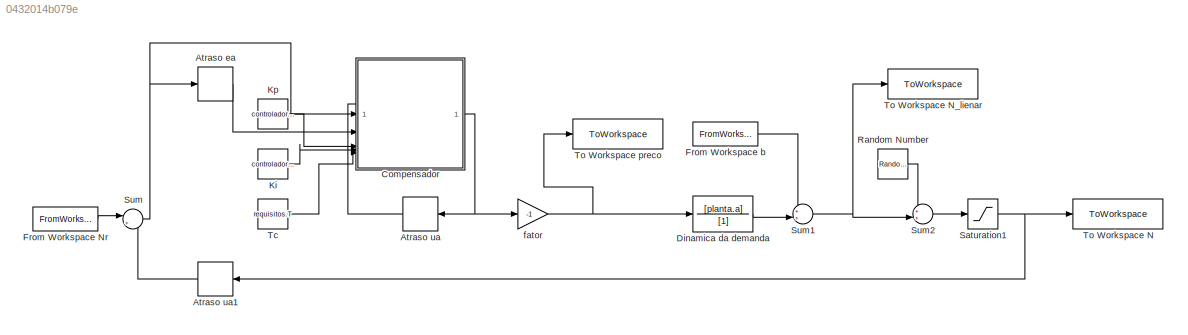
MODEL slx_0432014b079e
KIND model
CONFIG AbsTol = auto
CONFIG EnableMultiTasking = off
CONFIG FixedStep = auto
CONFIG MaxStep = auto
CONFIG MinStep = auto
CONFIG RelTol = 1e-3
CONFIG SampleTimeConstraint = Unconstrained
CONFIG SolverName = VariableStepAuto
CONFIG StartTime = 0.0
CONFIG StopTime = Tf
BLOCK [Delay] Atraso ea
  DelayLength = 1
  InitialCondition = 0
  InputPortMap = u0
  SampleTime = requisitos.T
BLOCK [Delay] Atraso ua
  DelayLength = 1
  InitialCondition = 0
  InputPortMap = u0
  SampleTime = requisitos.T
BLOCK [Delay] Atraso ua1
  DelayLength = 1
  InitialCondition = 0
  InputPortMap = u0
  SampleTime = requisitos.T
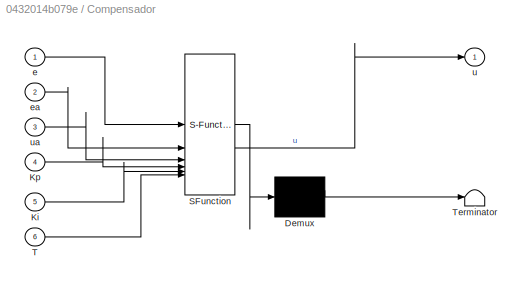
BLOCK [SubSystem] Compensador
  ErrorFcn = Stateflow.Translate.translate
  PermitHierarchicalResolution = ExplicitOnly
  SFBlockType = MATLAB Function
  SystemSampleTime = requisitos.T
  TreatAsAtomicUnit = on
BLOCK [Demux] Compensador/ Demux 
  Outputs = 1
BLOCK [S-Function] Compensador/ SFunction 
  EnableBusSupport = on
  FunctionName = sf_sfun
  PortCounts = [6 2]
  SFcnIsStateOwnerBlock = off
  SFunctionDeploymentMode = off
  Tag = Stateflow S-Function 2
BLOCK [Terminator] Compensador/ Terminator 
BLOCK [Inport] Compensador/Ki
  Port = 5
BLOCK [Inport] Compensador/Kp
  Port = 4
BLOCK [Inport] Compensador/T
  Port = 6
BLOCK [Inport] Compensador/e
BLOCK [Inport] Compensador/ea
  Port = 2
BLOCK [Outport] Compensador/u
BLOCK [Inport] Compensador/ua
  Port = 3
BLOCK [TransferFcn] Dinamica da demanda
  Denominator = [1]
  Numerator = [planta.a]
BLOCK [FromWorkspace] From Workspace Nr
  VariableName = Nr
BLOCK [FromWorkspace] From Workspace b
  OutDataTypeStr = double
  VariableName = b
BLOCK [Constant] Ki
  Value = controlador.Ki
BLOCK [Constant] Kp
  Value = controlador.Kp
BLOCK [RandomNumber] Random Number
  SampleTime = requisitos.T
  Variance = planta.variancia
BLOCK [Saturate] Saturation1
  LowerLimit = 0
  UpperLimit = 1
BLOCK [Sum] Sum
  Inputs = |+-
BLOCK [Sum] Sum1
  Inputs = ++|
BLOCK [Sum] Sum2
  Inputs = ++|
BLOCK [Constant] Tc
  Value = requisitos.T
BLOCK [ToWorkspace] To Workspace N
  FixptAsFi = on
  MaxDataPoints = inf
  SampleTime = requisitos.T/100
  SaveFormat = Structure With Time
  VariableName = N
BLOCK [ToWorkspace] To Workspace N_lienar
  FixptAsFi = on
  MaxDataPoints = inf
  SampleTime = requisitos.T/100
  SaveFormat = Structure With Time
  VariableName = N_linear
BLOCK [ToWorkspace] To Workspace preco
  FixptAsFi = on
  MaxDataPoints = inf
  SampleTime = requisitos.T/100
  SaveFormat = Structure With Time
  VariableName = preco
BLOCK [Gain] fator
  Gain = -1
LINE Atraso ea:1 -> Compensador:2
LINE Atraso ua1:1 -> Sum:2
LINE Atraso ua:1 -> Compensador:3
NET Compensador:1 -> Atraso ua:1, fator:1
LINE Dinamica da demanda:1 -> Sum1:2
LINE From Workspace Nr:1 -> Sum:1
LINE From Workspace b:1 -> Sum1:1
LINE Ki:1 -> Compensador:5
LINE Kp:1 -> Compensador:4
LINE Random Number:1 -> Sum2:1
NET Saturation1:1 -> Atraso ua1:1, To Workspace N:1
NET Sum1:1 -> Sum2:2, To Workspace N_lienar:1
LINE Sum2:1 -> Saturation1:1
NET Sum:1 -> Atraso ea:1, Compensador:1
LINE Tc:1 -> Compensador:6
NET fator:1 -> Dinamica da demanda:1, To Workspace preco:1
note: NET lines group one-source signal fan-out (src -> all destinations, sorted); 1:1 wires keep LINE
CHART Compensador states=1 transitions=1
  STATE_LABEL 'eML_blk_kernel()'
  STATE_LABEL 'SCRIPT:\nfunction u = compensador(e, ea, ua, Kp, Ki, T)\n% u = compensador(e, ea, ua, Kp, Ki, T, Pmax)\n% Implementa o compensador PI discreto.\n% Entradas:\n% e: erro atual e[k].\n% ea: erro anterior e[k-1].\n% ua: comando anterior u[k-1].\n% Kp: ganho proporcional.\n% Ki: ganho integrativo.\n% T: tempo de amostragem.\n% Pmax: limite de preco.\n% Saidas:\n% u: comando atual u[k].\n\nu = ua + (Kp + Ki*T/2)*e + (...<+155ch>'
CHART  states=0 transitions=0
